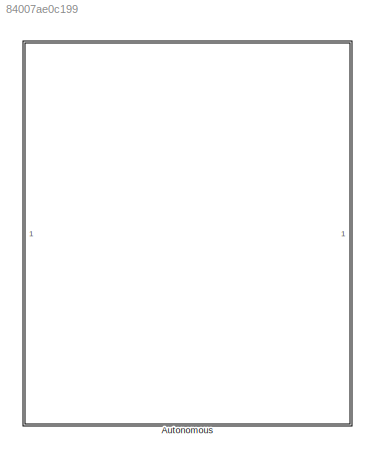
MODEL slx_84007ae0c199
KIND library
CONFIG AbsTol = auto
CONFIG EnableMultiTasking = off
CONFIG FixedStep = auto
CONFIG MaxStep = auto
CONFIG MinStep = auto
CONFIG RelTol = 1e-3
CONFIG SampleTimeConstraint = Unconstrained
CONFIG SolverName = VariableStepAuto
CONFIG StartTime = 0.0
CONFIG StopTime = 10.0
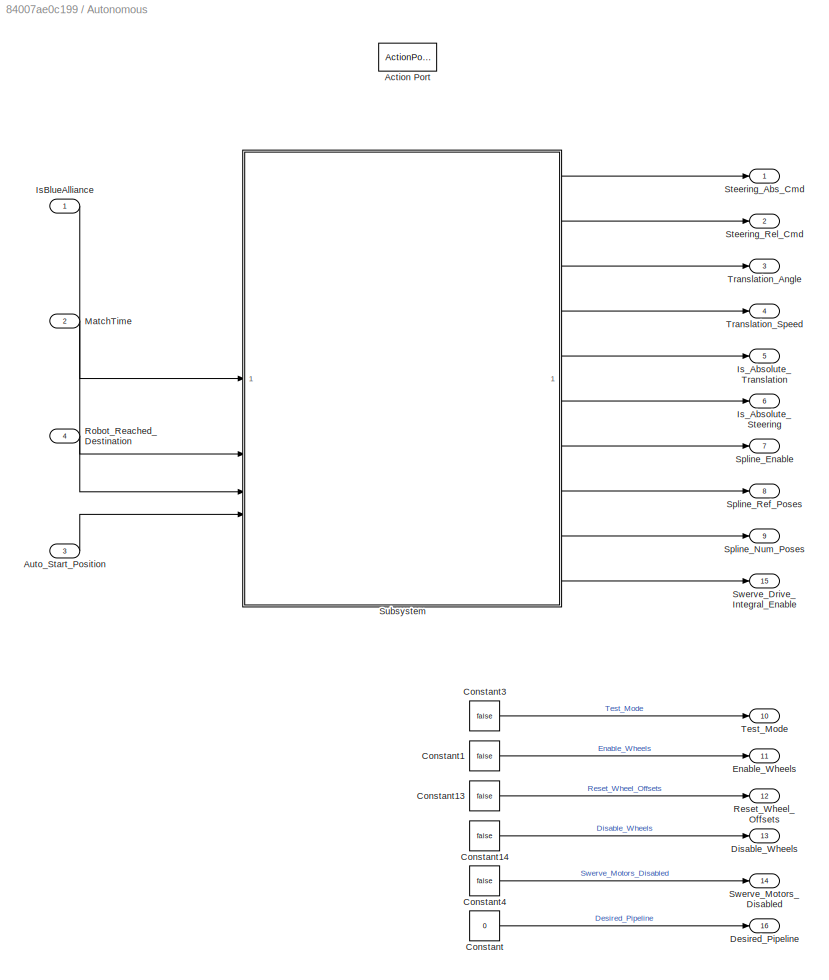
BLOCK [SubSystem] Autonomous
  TreatAsAtomicUnit = on
BLOCK [ActionPort] Autonomous/Action Port
  InitializeStates = reset
BLOCK [Inport] Autonomous/Auto_Start_Position
  Port = 3
BLOCK [Constant] Autonomous/Constant
  OutDataTypeStr = uint8
  Value = 0
BLOCK [Constant] Autonomous/Constant1
  OutDataTypeStr = boolean
  Value = false
BLOCK [Constant] Autonomous/Constant13
  OutDataTypeStr = boolean
  Value = false
BLOCK [Constant] Autonomous/Constant14
  OutDataTypeStr = boolean
  Value = false
BLOCK [Constant] Autonomous/Constant3
  OutDataTypeStr = boolean
  Value = false
BLOCK [Constant] Autonomous/Constant4
  OutDataTypeStr = boolean
  Value = false
BLOCK [Outport] Autonomous/Desired_Pipeline
  Port = 16
BLOCK [Outport] Autonomous/Disable_Wheels
  Port = 13
BLOCK [Outport] Autonomous/Enable_Wheels
  Port = 11
BLOCK [Inport] Autonomous/IsBlueAlliance
BLOCK [Outport] Autonomous/Is_Absolute_Steering
  Port = 6
BLOCK [Outport] Autonomous/Is_Absolute_Translation
  Port = 5
BLOCK [Inport] Autonomous/MatchTime
  Port = 2
BLOCK [Outport] Autonomous/Reset_Wheel_Offsets
  Port = 12
BLOCK [Inport] Autonomous/Robot_Reached_Destination
  Port = 4
BLOCK [Outport] Autonomous/Spline_Enable
  Port = 7
BLOCK [Outport] Autonomous/Spline_Num_Poses
  Port = 9
BLOCK [Outport] Autonomous/Spline_Ref_Poses
  Port = 8
BLOCK [Outport] Autonomous/Steering_Abs_Cmd
BLOCK [Outport] Autonomous/Steering_Rel_Cmd
  Port = 2
BLOCK [SubSystem] Autonomous/Subsystem
  ReferencedSubsystem = Autonomous_sub
BLOCK [Outport] Autonomous/Swerve_Drive_Integral_Enable
  Port = 15
BLOCK [Outport] Autonomous/Swerve_Motors_Disabled
  Port = 14
BLOCK [Outport] Autonomous/Test_Mode
  Port = 10
BLOCK [Outport] Autonomous/Translation_Angle
  Port = 3
BLOCK [Outport] Autonomous/Translation_Speed
  Port = 4
LINE Autonomous/Auto_Start_Position:1 -> Autonomous/Subsystem:4
LINE Autonomous/Constant13:1 -> Autonomous/Reset_Wheel_Offsets:1
LINE Autonomous/Constant14:1 -> Autonomous/Disable_Wheels:1
LINE Autonomous/Constant1:1 -> Autonomous/Enable_Wheels:1
LINE Autonomous/Constant3:1 -> Autonomous/Test_Mode:1
LINE Autonomous/Constant4:1 -> Autonomous/Swerve_Motors_Disabled:1
LINE Autonomous/Constant:1 -> Autonomous/Desired_Pipeline:1
LINE Autonomous/IsBlueAlliance:1 -> Autonomous/Subsystem:1
LINE Autonomous/MatchTime:1 -> Autonomous/Subsystem:2
LINE Autonomous/Robot_Reached_Destination:1 -> Autonomous/Subsystem:3
LINE Autonomous/Subsystem:1 -> Autonomous/Steering_Abs_Cmd:1
LINE Autonomous/Subsystem:10 -> Autonomous/Swerve_Drive_Integral_Enable:1
LINE Autonomous/Subsystem:2 -> Autonomous/Steering_Rel_Cmd:1
LINE Autonomous/Subsystem:3 -> Autonomous/Translation_Angle:1
LINE Autonomous/Subsystem:4 -> Autonomous/Translation_Speed:1
LINE Autonomous/Subsystem:5 -> Autonomous/Is_Absolute_Translation:1
LINE Autonomous/Subsystem:6 -> Autonomous/Is_Absolute_Steering:1
LINE Autonomous/Subsystem:7 -> Autonomous/Spline_Enable:1
LINE Autonomous/Subsystem:8 -> Autonomous/Spline_Ref_Poses:1
LINE Autonomous/Subsystem:9 -> Autonomous/Spline_Num_Poses:1
